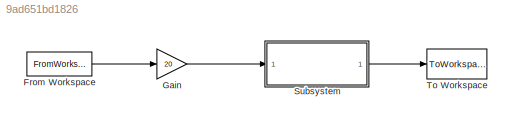
MODEL slx_9ad651bd1826
KIND model
CONFIG AbsTol = auto
CONFIG EnableMultiTasking = off
CONFIG FixedStep = auto
CONFIG MaxStep = auto
CONFIG MinStep = auto
CONFIG RelTol = 1e-3
CONFIG SampleTimeConstraint = Unconstrained
CONFIG Solver = VariableStepAuto
CONFIG SolverName = VariableStepAuto
CONFIG StartTime = 0.0
CONFIG StopTime = 180
BLOCK [FromWorkspace] From Workspace
  Interpolate = off
  OutputAfterFinalValue = Setting to zero
  SampleTime = 0.1
  VariableName = U_prbs
  ZeroCross = on
BLOCK [Gain] Gain
  Gain = 20
  OutDataTypeStr = Inherit: Inherit via internal rule
  ParamDataTypeStr = Inherit: Inherit via internal rule
  SaturateOnIntegerOverflow = off
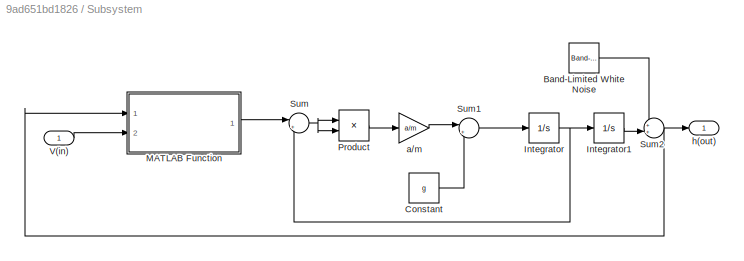
BLOCK [SubSystem] Subsystem
  Ports = [1, 1]
  RequestExecContextInheritance = off
  Variant = off
BLOCK [Reference] Subsystem/Band-Limited White Noise  REF=simulink/Sources/Band-Limited
White Noise
  Ports = [0, 1]
  SourceBlock = simulink/Sources/Band-Limited\nWhite Noise
  SourceProductBaseCode = SL
  SourceProductName = Simulink
  SourceType = Band-Limited White Noise.
BLOCK [Constant] Subsystem/Constant
  Value = g
BLOCK [Integrator] Subsystem/Integrator
  Ports = [1, 1]
BLOCK [Integrator] Subsystem/Integrator1
  InitialCondition = 0.2
  Ports = [1, 1]
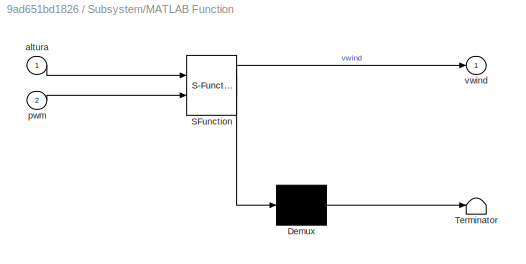
BLOCK [SubSystem] Subsystem/MATLAB Function
  ErrorFcn = Stateflow.Translate.translate
  PermitHierarchicalResolution = ExplicitOnly
  Ports = [2, 1]
  RequestExecContextInheritance = off
  SFBlockType = MATLAB Function
  TreatAsAtomicUnit = on
  Variant = off
BLOCK [Demux] Subsystem/MATLAB Function/ Demux 
  Outputs = 1
  Ports = [1, 1]
BLOCK [S-Function] Subsystem/MATLAB Function/ SFunction 
  EnableBusSupport = on
  FunctionName = sf_sfun
  PortCounts = [2 2]
  Ports = [2, 2]
  SFcnIsStateOwnerBlock = off
  SFunctionDeploymentMode = off
  Tag = Stateflow S-Function simulacao_sem_linearizar_prbs 2
BLOCK [Terminator] Subsystem/MATLAB Function/ Terminator 
BLOCK [Inport] Subsystem/MATLAB Function/altura
  IconDisplay = Port number
BLOCK [Inport] Subsystem/MATLAB Function/pwm
  IconDisplay = Port number
  Port = 2
BLOCK [Outport] Subsystem/MATLAB Function/vwind
  IconDisplay = Port number
BLOCK [Product] Subsystem/Product
  InputSameDT = off
  OutDataTypeStr = Inherit: Inherit via internal rule
  Ports = [2, 1]
  RndMeth = Floor
  SaturateOnIntegerOverflow = off
BLOCK [Sum] Subsystem/Sum
  IconShape = round
  InputSameDT = off
  Inputs = |+-
  OutDataTypeStr = Inherit: Inherit via internal rule
  Ports = [2, 1]
  SaturateOnIntegerOverflow = off
BLOCK [Sum] Subsystem/Sum1
  IconShape = round
  InputSameDT = off
  Inputs = |+-
  OutDataTypeStr = Inherit: Inherit via internal rule
  Ports = [2, 1]
  SaturateOnIntegerOverflow = off
BLOCK [Sum] Subsystem/Sum2
  IconShape = round
  InputSameDT = off
  Inputs = ++|
  OutDataTypeStr = Inherit: Inherit via internal rule
  Ports = [2, 1]
  SaturateOnIntegerOverflow = off
BLOCK [Inport] Subsystem/V(in)
  IconDisplay = Port number
BLOCK [Gain] Subsystem/a//m
  Gain = a/m
  OutDataTypeStr = Inherit: Inherit via internal rule
  ParamDataTypeStr = Inherit: Inherit via internal rule
  SaturateOnIntegerOverflow = off
BLOCK [Outport] Subsystem/h(out)
  IconDisplay = Port number
BLOCK [ToWorkspace] To Workspace
  FixptAsFi = on
  MaxDataPoints = inf
  Ports = [1]
  SampleTime = 0.1
  Save2DSignal = 3-D array (concatenate along third dimension)
  SaveFormat = Timeseries
  VariableName = y_prbs
LINE From Workspace:1 -> Gain:1
LINE Gain:1 -> Subsystem:1
LINE Subsystem/Band-Limited White Noise:1 -> Subsystem/Sum2:1
LINE Subsystem/Constant:1 -> Subsystem/Sum1:2
LINE Subsystem/Integrator1:1 -> Subsystem/Sum2:2
NET Subsystem/Integrator:1 -> Subsystem/Integrator1:1, Subsystem/Sum:2
LINE Subsystem/MATLAB Function:1 -> Subsystem/Sum:1
LINE Subsystem/Product:1 -> Subsystem/a//m:1
LINE Subsystem/Sum1:1 -> Subsystem/Integrator:1
NET Subsystem/Sum2:1 -> Subsystem/MATLAB Function:1, Subsystem/h(out):1
NET Subsystem/Sum:1 -> Subsystem/Product:1, Subsystem/Product:2
LINE Subsystem/V(in):1 -> Subsystem/MATLAB Function:2
LINE Subsystem/a//m:1 -> Subsystem/Sum1:1
LINE Subsystem:1 -> To Workspace:1
note: NET lines group one-source signal fan-out (src -> all destinations, sorted); 1:1 wires keep LINE
CHART Subsystem/MATLAB Function states=1 transitions=1
  STATE_LABEL 'eML_blk_kernel()'
  STATE_LABEL 'SCRIPT:\nfunction vwind = fittedmodel(altura,pwm)\n\np00 =       18.37;\np10 =     -0.5502;\np01 =       0.224;\np20 =      0.0105;\np11 =   -0.003002;\np02 =  -0.0006906;\np30 =  -6.885e-05;\np21 =   1.084e-05;\np12 =   8.743e-06;\np03 =   2.752e-07;\nvwind = p00 + p10*altura + p01*pwm + p20*altura^2 + p11*altura*pwm + p02*pwm^2 + p30*altura^3 + p21*altura^2*pwm + p12*altura*pwm^2 + p03*pwm^3;\nif vwind <0 \n  ...<+20ch>'
